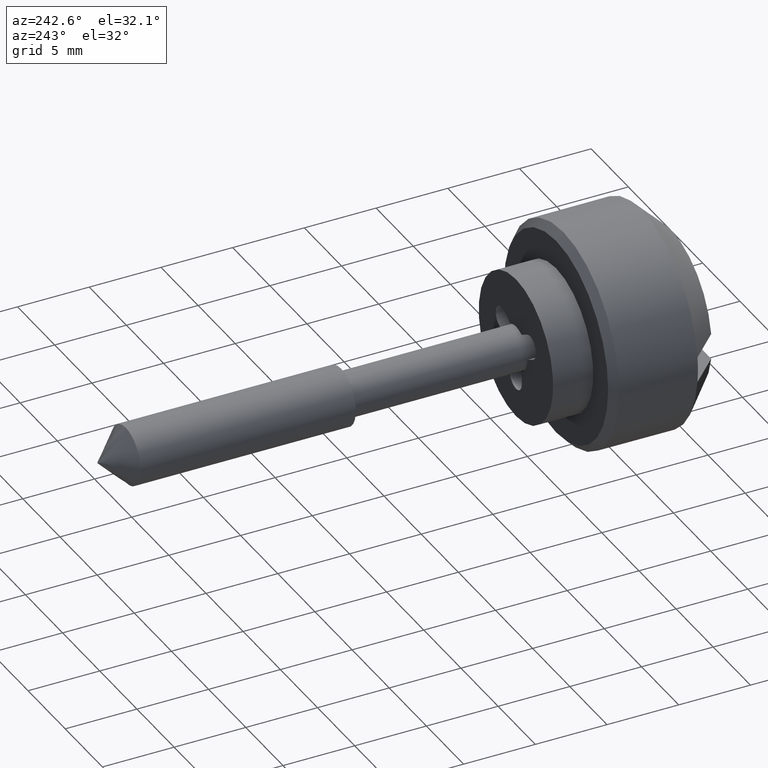
[diagram: clean part render]
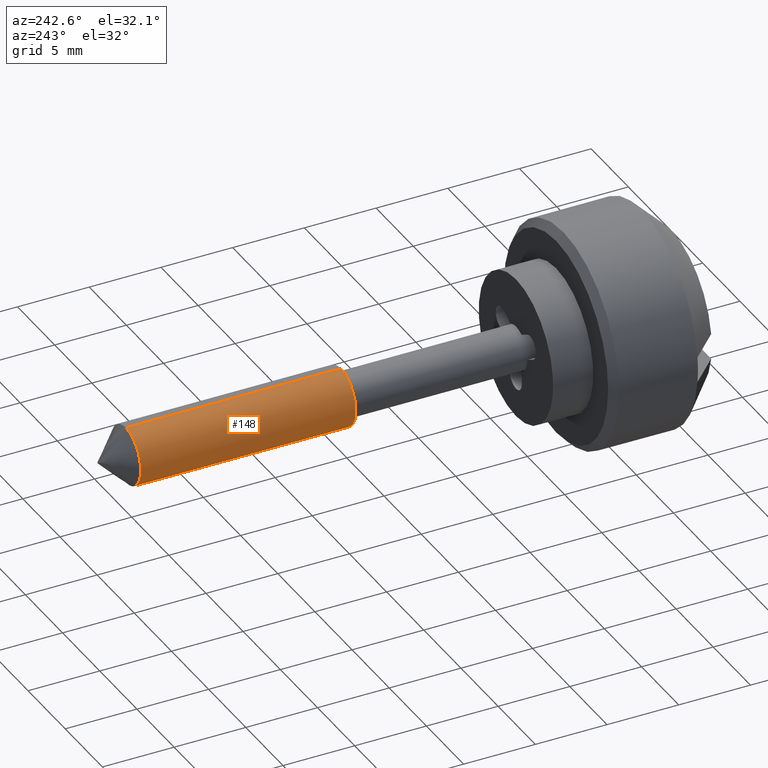
[diagram: same view with one face highlighted and labeled with its STEP entity id]
A machine part, auxiliary view. The second image highlights one B-rep face of the part: STEP entity #148.
In plain terms, the highlighted cylindrical surface (edge-blend (fillet) strip) has radius 2 mm, axis along (0, 1, 0).
Its self-contained STEP definition (entity closure, byte-faithful):
#148=ADVANCED_FACE('',(#516),#515,.T.);
#515=CYLINDRICAL_SURFACE('',#759,2.00000000000E+00);
#516=FACE_OUTER_BOUND('',#760,.T.);
#756=CARTESIAN_POINT('',(7.00000000000E+00,0.00000000000E+00,0.00000000000E+00));
#757=DIRECTION('',(1.00000000000E+00,-0.00000000000E+00,-0.00000000000E+00));
#758=DIRECTION('',(0.00000000000E+00,0.00000000000E+00,-1.00000000000E+00));
#759=AXIS2_PLACEMENT_3D('',#756,#757,#758);
#760=EDGE_LOOP('',(#930,#931,#932,#933));
#930=ORIENTED_EDGE('',*,*,#1021,.T.);
#931=ORIENTED_EDGE('',*,*,#1022,.F.);
#932=ORIENTED_EDGE('',*,*,#1000,.F.);
#933=ORIENTED_EDGE('',*,*,#1023,.T.);
#1000=EDGE_CURVE('',#1441,#1442,#1443,.T.);
#1021=EDGE_CURVE('',#1557,#1556,#1577,.T.);
#1022=EDGE_CURVE('',#1442,#1556,#1583,.T.);
#1023=EDGE_CURVE('',#1441,#1557,#1589,.T.);
#1441=VERTEX_POINT('',#1856);
#1442=VERTEX_POINT('',#1857);
#1443=CIRCLE('',#1861,2.00000000000E+00);
#1556=VERTEX_POINT('',#1919);
#1557=VERTEX_POINT('',#1920);
#1577=CIRCLE('',#1933,2.00000000000E+00);
#1583=(BOUNDED_CURVE() B_SPLINE_CURVE(1,(#1934,#1935),.UNSPECIFIED.,.F.,.F.) B_SPLINE_CURVE_WITH_KNOTS((2,2),(8.33333328360E-02,9.16666666871E-01),.UNSPECIFIED.) CURVE() GEOMETRIC_REPRESENTATION_ITEM() RATIONAL_B_SPLINE_CURVE((1.00000000000E+00,1.00000000000E+00)) REPRESENTATION_ITEM('') );
#1589=(BOUNDED_CURVE() B_SPLINE_CURVE(1,(#1936,#1937),.UNSPECIFIED.,.F.,.F.) B_SPLINE_CURVE_WITH_KNOTS((2,2),(8.33333333333E-02,9.16666666667E-01),.UNSPECIFIED.) CURVE() GEOMETRIC_REPRESENTATION_ITEM() RATIONAL_B_SPLINE_CURVE((7.50000000000E-01,7.50000000000E-01)) REPRESENTATION_ITEM('') );
#1856=CARTESIAN_POINT('',(1.30000000000E+01,0.00000000000E+00,2.00000000000E+00));
#1857=CARTESIAN_POINT('',(1.30000000000E+01,2.22044604925E-16,-2.00000000000E+00));
#1858=CARTESIAN_POINT('',(1.30000000000E+01,0.00000000000E+00,0.00000000000E+00));
#1859=DIRECTION('',(-1.00000000000E+00,0.00000000000E+00,0.00000000000E+00));
#1860=DIRECTION('',(0.00000000000E+00,-1.22460635382E-16,1.00000000000E+00));
#1861=AXIS2_PLACEMENT_3D('',#1858,#1859,#1860);
#1919=CARTESIAN_POINT('',(2.80000000000E+01,2.22044604925E-16,-2.00000000000E+00));
#1920=CARTESIAN_POINT('',(2.80000000000E+01,0.00000000000E+00,2.00000000000E+00));
#1930=CARTESIAN_POINT('',(2.80000000000E+01,0.00000000000E+00,0.00000000000E+00));
#1931=DIRECTION('',(-1.00000000000E+00,0.00000000000E+00,0.00000000000E+00));
#1932=DIRECTION('',(0.00000000000E+00,-1.22460635382E-16,1.00000000000E+00));
#1933=AXIS2_PLACEMENT_3D('',#1930,#1931,#1932);
#1934=CARTESIAN_POINT('',(1.29999999910E+01,0.00000000000E+00,-2.00000000000E+00));
#1935=CARTESIAN_POINT('',(2.80000000037E+01,0.00000000000E+00,-2.00000000000E+00));
#1936=CARTESIAN_POINT('',(1.30000000000E+01,-7.40148683083E-17,2.00000000000E+00));
#1937=CARTESIAN_POINT('',(2.80000000000E+01,-7.40148683083E-17,2.00000000000E+00));